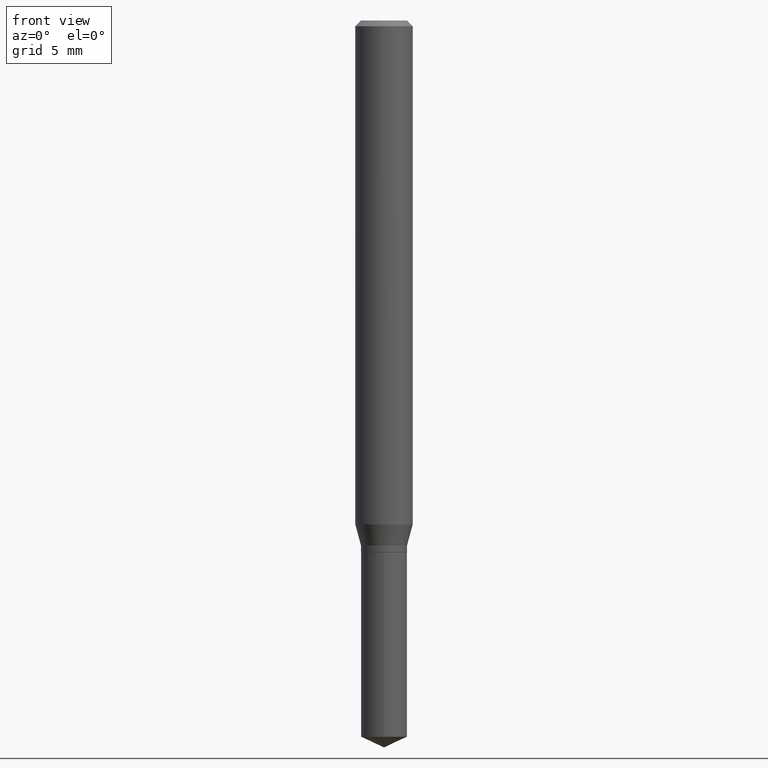
[diagram: clean part render]
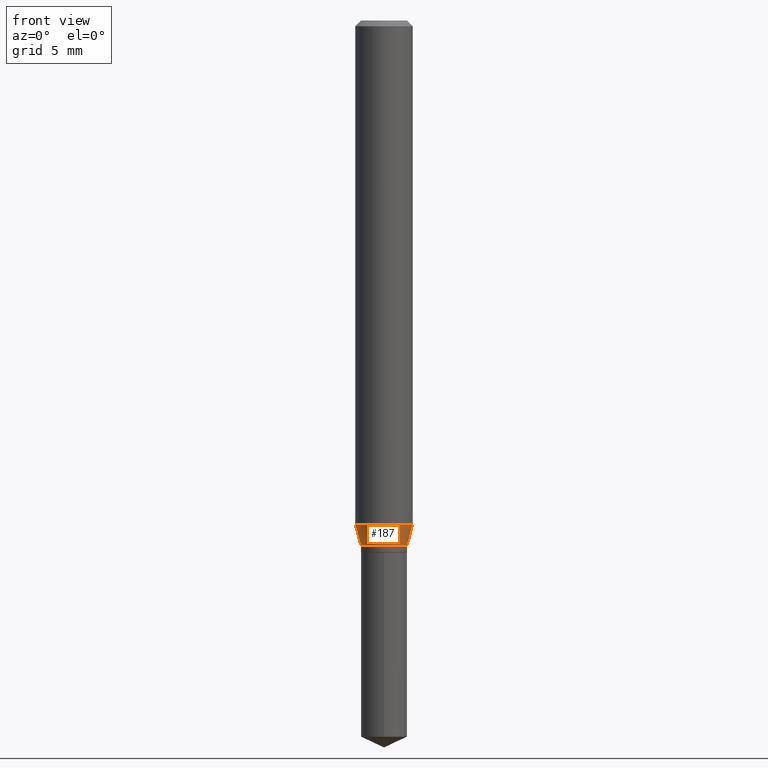
[diagram: same view with one face highlighted and labeled with its STEP entity id]
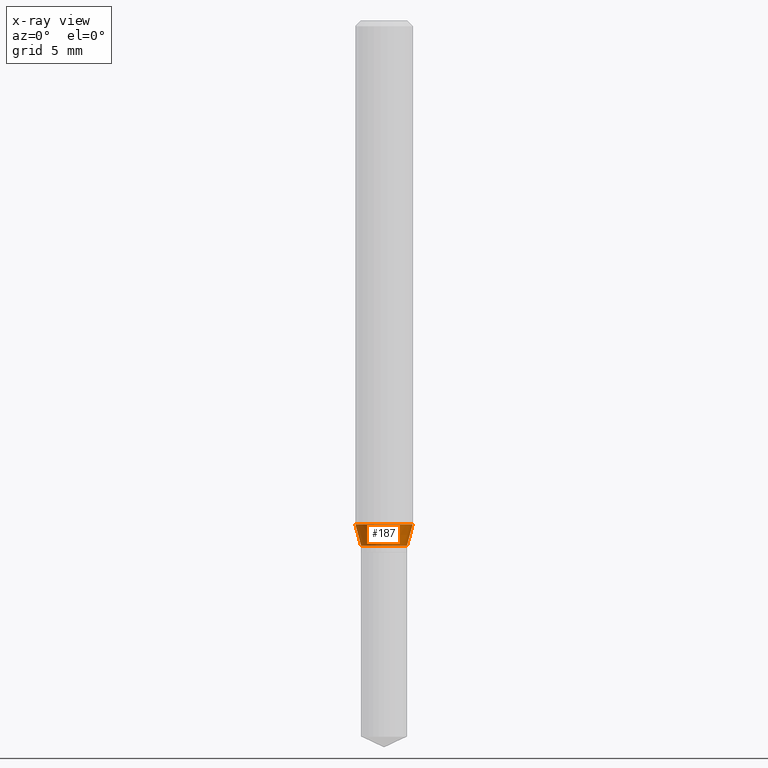
[diagram: x-ray of the same camera — body ghosted, the highlighted face saturated]
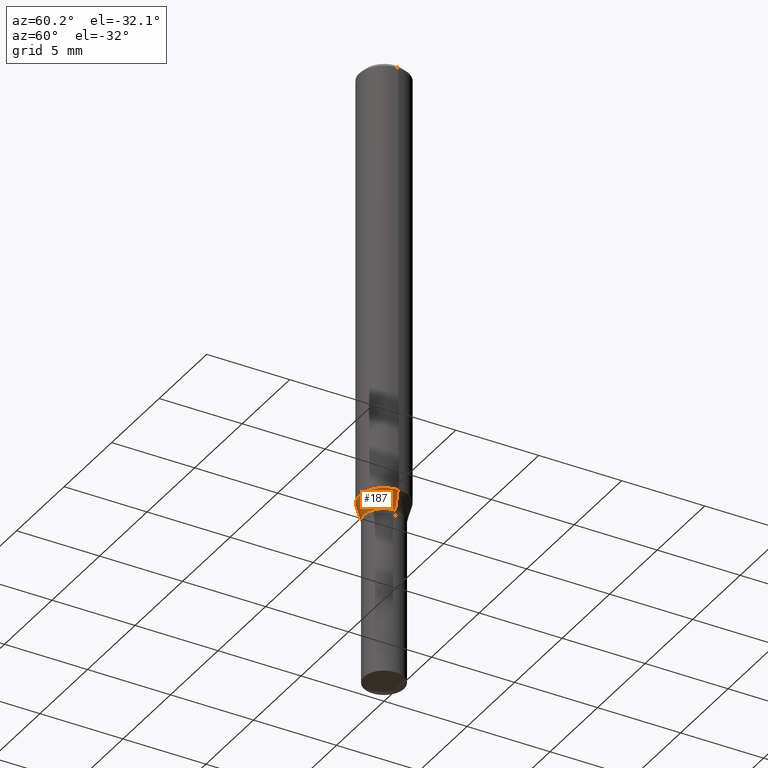
[diagram: same view with one face highlighted and labeled with its STEP entity id]
A machine part, front view. The second image highlights one B-rep face of the part: STEP entity #187.
The next image is the same camera in x-ray: the body ghosted, the highlighted face saturated — about 0% of this face is hidden behind the body in this view.
A second angle (auxiliary view) of the same face is appended — the face is thin or edge-on in the first view.
In plain terms, the highlighted conical surface has half-angle 15 deg.
Its self-contained STEP definition (entity closure, byte-faithful):
#12 = CARTESIAN_POINT ( 'NONE',  ( 0.04744999999999997831, -4.103188869408462916E-15, -1.080300000000000038 ) ) ;
#40 = ORIENTED_EDGE ( 'NONE', *, *, #145, .T. ) ;
#52 = DIRECTION ( 'NONE',  ( -2.445468806185136597E-29, 3.491481338843145583E-15, 1.000000000000000000 ) ) ;
#81 = EDGE_CURVE ( 'NONE', #341, #105, #103, .T. ) ;
#99 = DIRECTION ( 'NONE',  ( 1.000000000000000000, -6.982962677686267499E-15, 0.000000000000000000 ) ) ;
#103 = CIRCLE ( 'NONE', #335, 0.04744999999999997831 ) ;
#105 = VERTEX_POINT ( 'NONE', #12 ) ;
#126 = DIRECTION ( 'NONE',  ( -2.445468806185136597E-29, 3.491481338843145583E-15, 1.000000000000000000 ) ) ;
#130 = DIRECTION ( 'NONE',  ( 0.2588190451025214611, 1.565188264969620982E-15, 0.9659258262890679791 ) ) ;
#145 = EDGE_CURVE ( 'NONE', #105, #147, #360, .T. ) ;
#147 = VERTEX_POINT ( 'NONE', #207 ) ;
#156 = DIRECTION ( 'NONE',  ( 1.000000000000000000, -6.982962677686265133E-15, 0.000000000000000000 ) ) ;
#177 = DIRECTION ( 'NONE',  ( -2.445468806185136597E-29, 3.491481338843145583E-15, 1.000000000000000000 ) ) ;
#182 = CARTESIAN_POINT ( 'NONE',  ( -0.04744999999999997831, -3.434694762234082223E-15, -1.080300000000000038 ) ) ;
#187 = ADVANCED_FACE ( 'NONE', ( #481 ), #422, .T. ) ;
#188 = LINE ( 'NONE', #182, #212 ) ;
#195 = DIRECTION ( 'NONE',  ( 1.000000000000000000, -6.982962677686267499E-15, 0.000000000000000000 ) ) ;
#205 = AXIS2_PLACEMENT_3D ( 'NONE', #424, #126, #156 ) ;
#207 = CARTESIAN_POINT ( 'NONE',  ( 0.05905000000000013016, -4.033038761766825162E-15, -1.037008210632200500 ) ) ;
#212 = VECTOR ( 'NONE', #340, 39.37007874015748143 ) ;
#218 = CARTESIAN_POINT ( 'NONE',  ( -0.04744999999999997831, -3.458611409405157610E-15, -1.080300000000000038 ) ) ;
#254 = CARTESIAN_POINT ( 'NONE',  ( 0.04744999999999997831, -4.103188869408462916E-15, -1.080300000000000038 ) ) ;
#259 = EDGE_LOOP ( 'NONE', ( #397, #379, #40, #304 ) ) ;
#298 = VERTEX_POINT ( 'NONE', #387 ) ;
#304 = ORIENTED_EDGE ( 'NONE', *, *, #405, .F. ) ;
#335 = AXIS2_PLACEMENT_3D ( 'NONE', #431, #52, #195 ) ;
#336 = AXIS2_PLACEMENT_3D ( 'NONE', #410, #177, #99 ) ;
#340 = DIRECTION ( 'NONE',  ( -0.2588190451025214611, 5.211531920934550253E-15, 0.9659258262890679791 ) ) ;
#341 = VERTEX_POINT ( 'NONE', #218 ) ;
#360 = LINE ( 'NONE', #254, #421 ) ;
#363 = EDGE_CURVE ( 'NONE', #341, #298, #188, .T. ) ;
#379 = ORIENTED_EDGE ( 'NONE', *, *, #81, .T. ) ;
#385 = CIRCLE ( 'NONE', #205, 0.05905000000000013016 ) ;
#387 = CARTESIAN_POINT ( 'NONE',  ( -0.05905000000000013016, -3.201119330183110355E-15, -1.037008210632200500 ) ) ;
#397 = ORIENTED_EDGE ( 'NONE', *, *, #363, .F. ) ;
#405 = EDGE_CURVE ( 'NONE', #298, #147, #385, .T. ) ;
#410 = CARTESIAN_POINT ( 'NONE',  ( 2.641839951321803071E-29, -3.771847290352249705E-15, -1.080300000000000038 ) ) ;
#421 = VECTOR ( 'NONE', #130, 39.37007874015748143 ) ;
#422 = CONICAL_SURFACE ( 'NONE', #336, 0.04744999999999997831, 0.2617993877991501850 ) ;
#424 = CARTESIAN_POINT ( 'NONE',  ( 2.535971230858911945E-29, -3.620694815649450242E-15, -1.037008210632200500 ) ) ;
#431 = CARTESIAN_POINT ( 'NONE',  ( 2.641839951321803071E-29, -3.771847290352249705E-15, -1.080300000000000038 ) ) ;
#481 = FACE_OUTER_BOUND ( 'NONE', #259, .T. ) ;